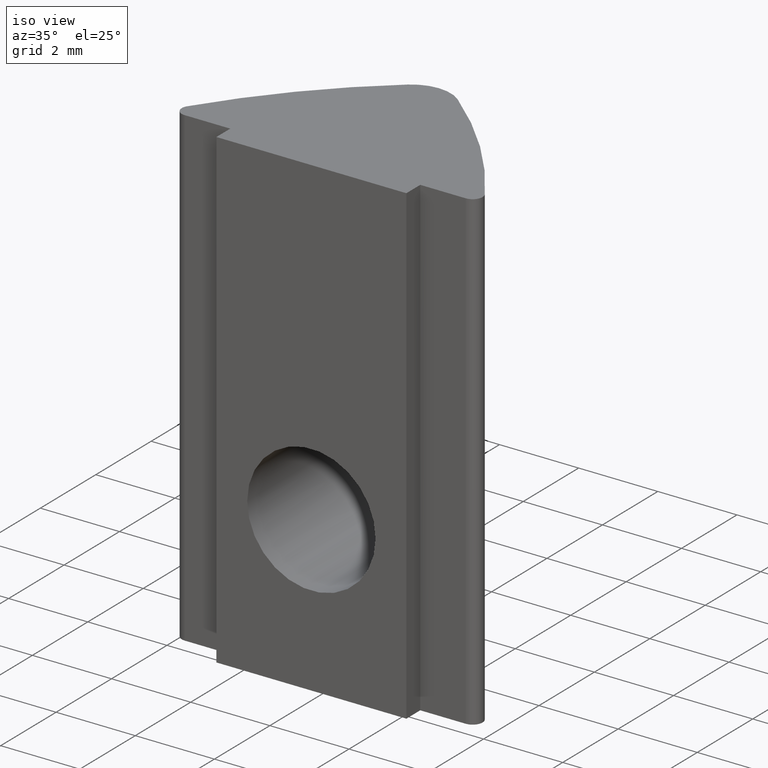
[diagram: clean part render]
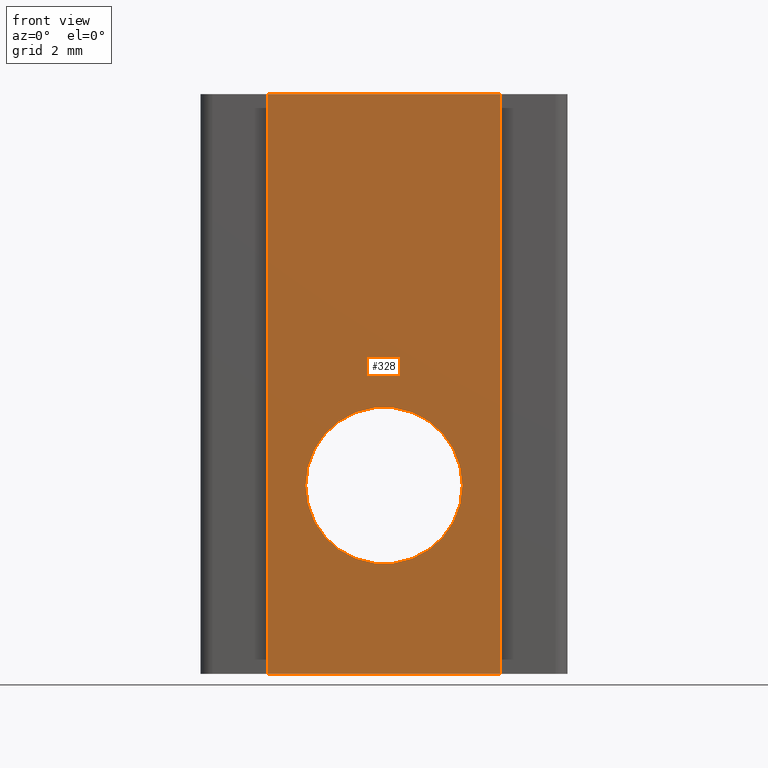
[diagram: tour spotlight — one face highlighted and labeled with its STEP entity id]
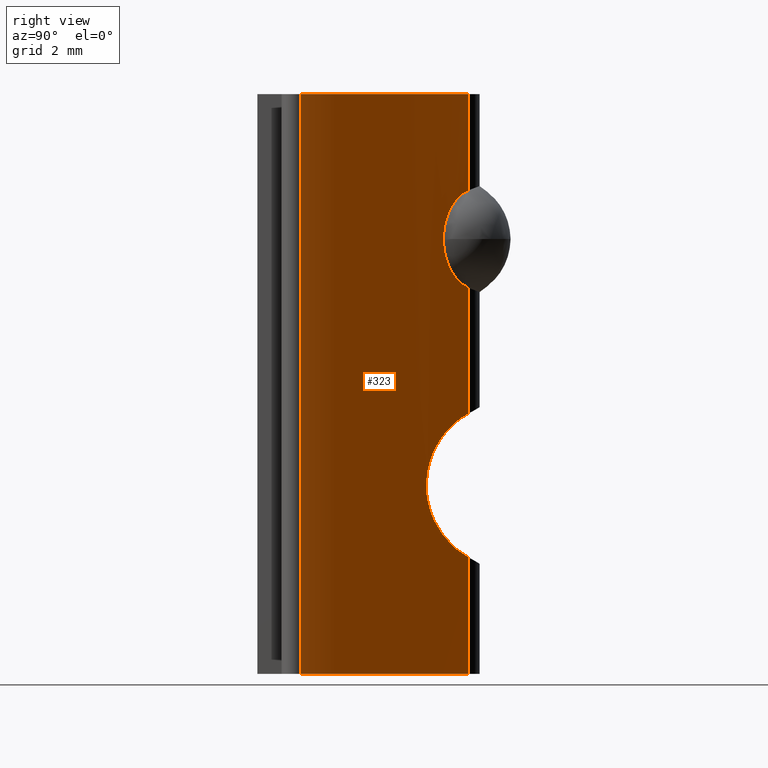
[diagram: tour spotlight — one face highlighted and labeled with its STEP entity id]
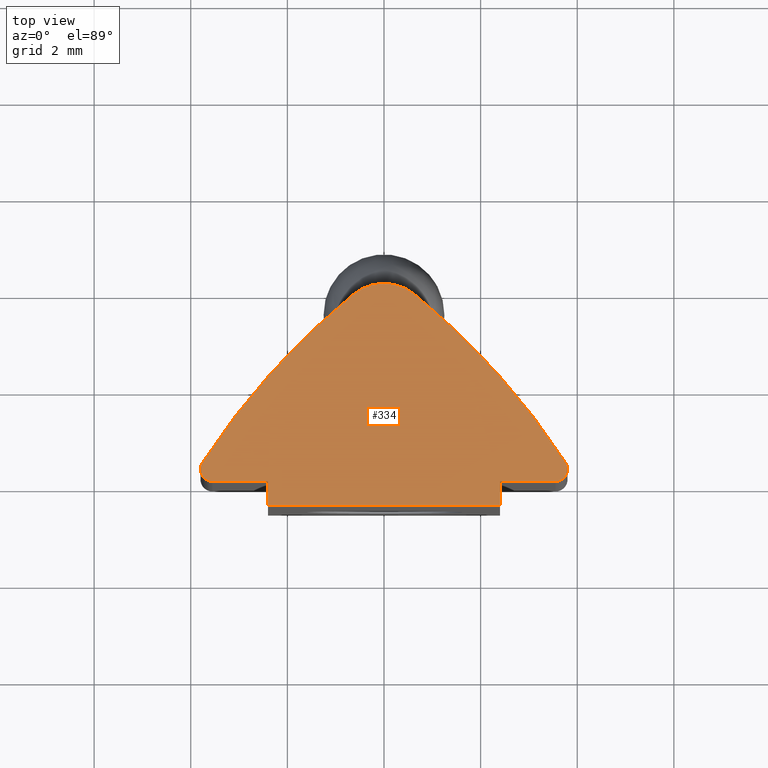
[diagram: tour spotlight — one face highlighted and labeled with its STEP entity id]
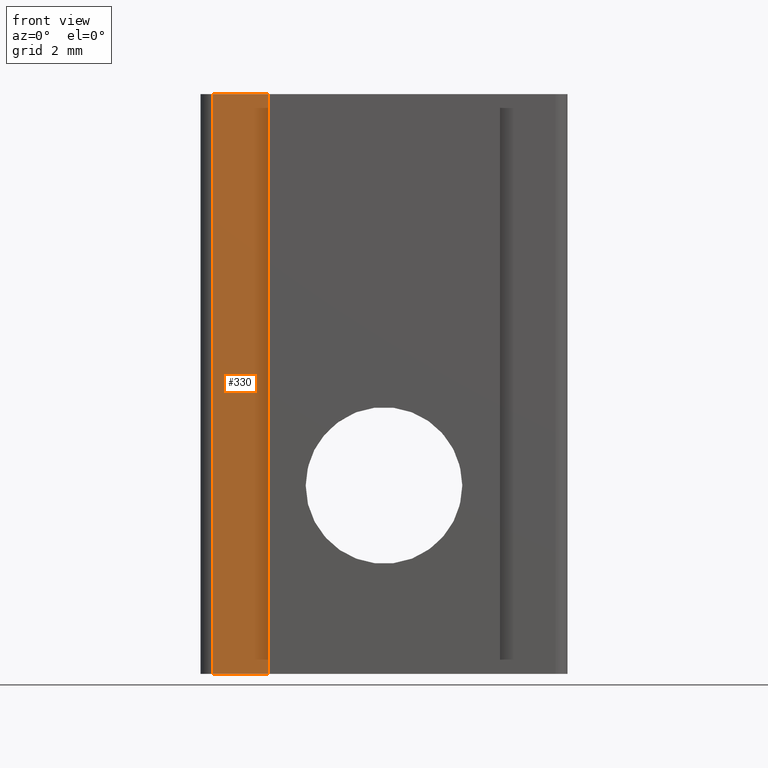
[diagram: tour spotlight — one face highlighted and labeled with its STEP entity id]
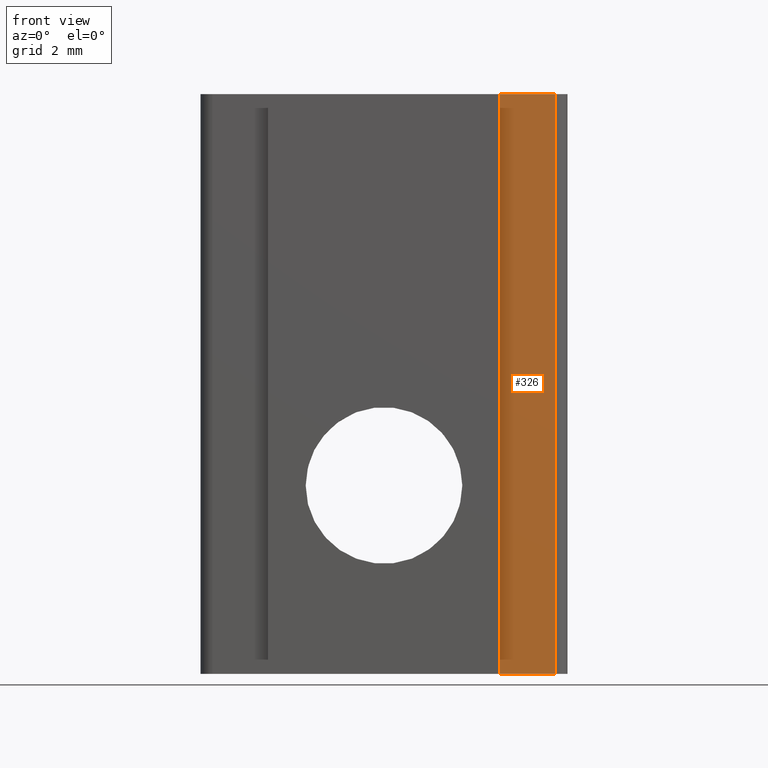
[diagram: tour spotlight — one face highlighted and labeled with its STEP entity id]
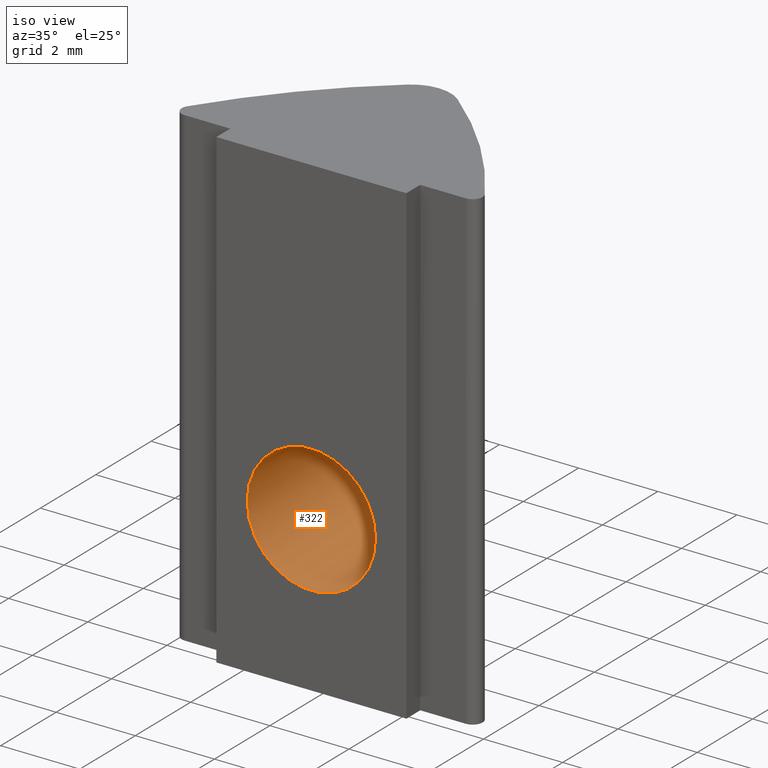
[diagram: tour spotlight — one face highlighted and labeled with its STEP entity id]
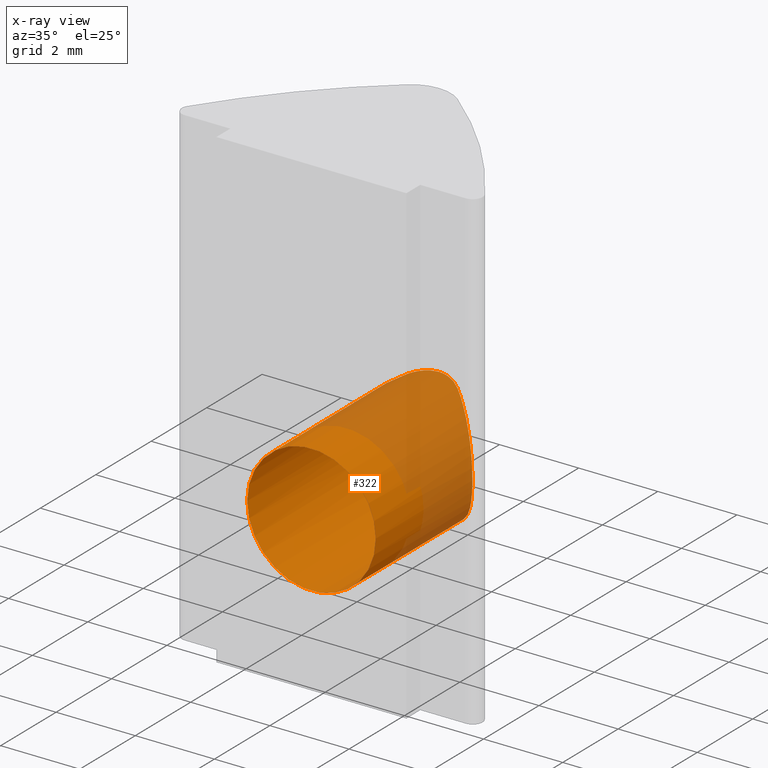
[diagram: x-ray of the same camera — body ghosted, this tour face saturated]
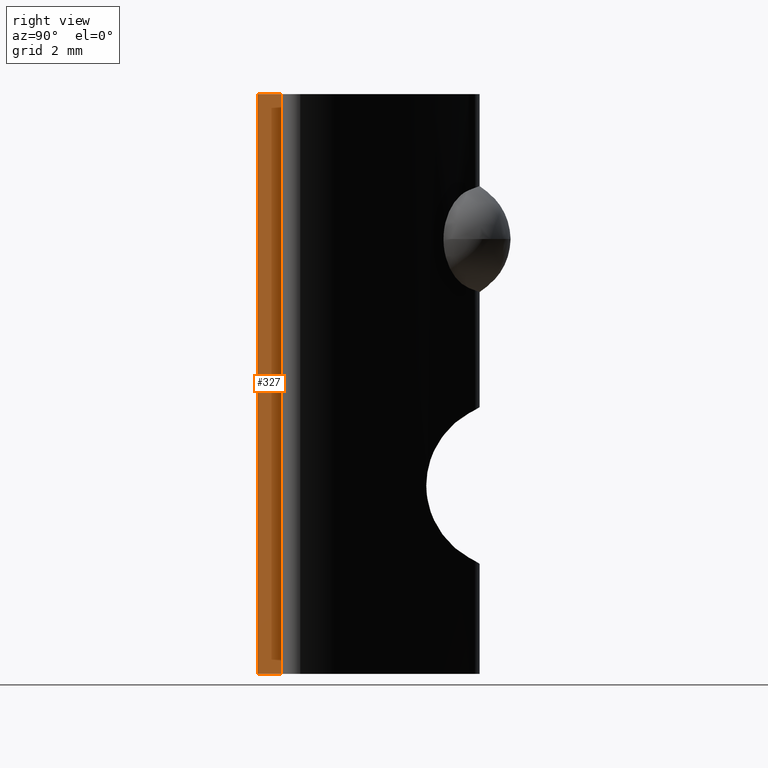
[diagram: tour spotlight — one face highlighted and labeled with its STEP entity id]
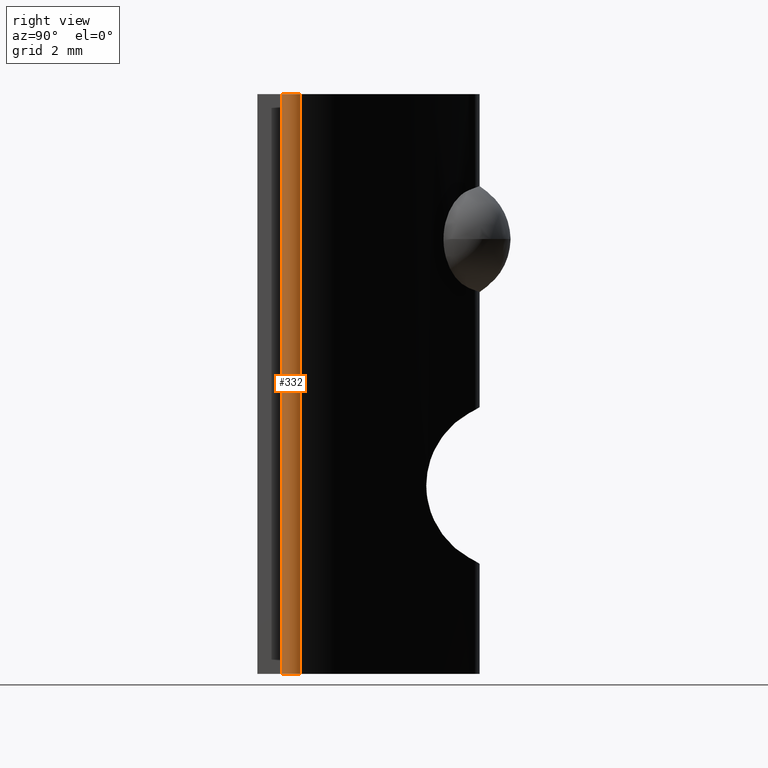
[diagram: tour spotlight — one face highlighted and labeled with its STEP entity id]
A machine part: a face-by-face anatomy tour. The part has 16 B-rep faces; the first image is the clean iso view, then the 8 largest visible faces are spotlighted one at a time (largest first), each with its STEP entity span.

Face 1 — front view, entity #328. In plain terms, the highlighted planar face has unit normal (0, -1, 0).
Definition (entity closure, byte-faithful):
#16=PLANE('',#375);
#36=LINE('',#658,#61);
#37=LINE('',#661,#62);
#38=LINE('',#663,#63);
#39=LINE('',#664,#64);
#61=VECTOR('',#437,10.);
#62=VECTOR('',#440,10.);
#63=VECTOR('',#441,10.);
#64=VECTOR('',#442,10.);
#80=FACE_BOUND('',#119,.T.);
#101=FACE_OUTER_BOUND('',#118,.T.);
#118=EDGE_LOOP('',(#275,#276,#277,#278));
#119=EDGE_LOOP('',(#279));
#129=CIRCLE('',#365,1.621);
#153=VERTEX_POINT('',#603);
#164=VERTEX_POINT('',#654);
#165=VERTEX_POINT('',#656);
#166=VERTEX_POINT('',#660);
#167=VERTEX_POINT('',#662);
#189=EDGE_CURVE('',#153,#153,#129,.T.);
#206=EDGE_CURVE('',#164,#165,#36,.T.);
#207=EDGE_CURVE('',#164,#166,#37,.T.);
#208=EDGE_CURVE('',#167,#165,#38,.T.);
#209=EDGE_CURVE('',#166,#167,#39,.T.);
#275=ORIENTED_EDGE('',*,*,#207,.F.);
#276=ORIENTED_EDGE('',*,*,#206,.T.);
#277=ORIENTED_EDGE('',*,*,#208,.F.);
#278=ORIENTED_EDGE('',*,*,#209,.F.);
#279=ORIENTED_EDGE('',*,*,#189,.T.);
#328=ADVANCED_FACE('',(#101,#80),#16,.T.);
#365=AXIS2_PLACEMENT_3D('',#605,#408,#409);
#375=AXIS2_PLACEMENT_3D('',#659,#438,#439);
#408=DIRECTION('center_axis',(0.,1.,0.));
#409=DIRECTION('ref_axis',(-1.,0.,0.));
#437=DIRECTION('',(0.,0.,1.));
#438=DIRECTION('center_axis',(0.,-1.,0.));
#439=DIRECTION('ref_axis',(1.,0.,0.));
#440=DIRECTION('',(-1.,0.,0.));
#441=DIRECTION('',(1.,0.,0.));
#442=DIRECTION('',(0.,0.,1.));
#603=CARTESIAN_POINT('',(1.621,-0.5,3.9));
#605=CARTESIAN_POINT('Origin',(0.,-0.5,3.9));
#654=CARTESIAN_POINT('',(2.4,-0.5,0.));
#656=CARTESIAN_POINT('',(2.4,-0.5,12.));
#658=CARTESIAN_POINT('',(2.4,-0.5,0.));
#659=CARTESIAN_POINT('Origin',(-2.4,-0.5,0.));
#660=CARTESIAN_POINT('',(-2.4,-0.5,0.));
#661=CARTESIAN_POINT('',(2.4,-0.5,0.));
#662=CARTESIAN_POINT('',(-2.4,-0.5,12.));
#663=CARTESIAN_POINT('',(2.4,-0.5,12.));
#664=CARTESIAN_POINT('',(-2.4,-0.5,0.));

Face 2 — right view, entity #323. In plain terms, the highlighted cylindrical surface (partial cylindrical patch) has radius 15 mm, axis along (0, 0, 1).
Definition (entity closure, byte-faithful):
#25=LINE('',#577,#50);
#27=LINE('',#632,#52);
#28=LINE('',#636,#53);
#29=LINE('',#639,#54);
#50=VECTOR('',#404,10.);
#52=VECTOR('',#412,10.);
#53=VECTOR('',#415,10.);
#54=VECTOR('',#418,10.);
#74=CYLINDRICAL_SURFACE('',#366,15.);
#81=B_SPLINE_CURVE_WITH_KNOTS('',3,(#476,#477,#478,#479,#480,#481,#482,
#483,#484,#485,#486,#487,#488,#489,#490,#491,#492,#493),.UNSPECIFIED.,.F.,
 .F.,(4,2,2,2,2,2,2,2,4),(0.182968456243765,0.210851468543244,0.243239566367713,
0.279251537174953,0.315263507982192,0.351275478789432,0.387287449596671,
0.41967554742114,0.447558559720619),.UNSPECIFIED.);
#88=B_SPLINE_CURVE_WITH_KNOTS('',3,(#593,#594,#595,#596,#597,#598,#599,
#600,#601,#602),.UNSPECIFIED.,.F.,.F.,(4,2,2,2,4),(0.550486779478098,0.611712814552116,
0.672938849626135,0.752841345312403,0.755383937668563),.UNSPECIFIED.);
#89=B_SPLINE_CURVE_WITH_KNOTS('',3,(#607,#608,#609,#610,#611,#612,#613,
#614,#615,#616),.UNSPECIFIED.,.F.,.F.,(4,2,2,2,4),(0.345589621287633,0.348132213643793,
0.428034709330061,0.48926074440408,0.550486779478098),.UNSPECIFIED.);
#96=FACE_OUTER_BOUND('',#113,.T.);
#113=EDGE_LOOP('',(#249,#250,#251,#252,#253,#254,#255,#256,#257));
#130=CIRCLE('',#367,15.);
#131=CIRCLE('',#368,15.);
#140=VERTEX_POINT('',#474);
#141=VERTEX_POINT('',#475);
#150=VERTEX_POINT('',#576);
#152=VERTEX_POINT('',#592);
#154=VERTEX_POINT('',#606);
#156=VERTEX_POINT('',#631);
#157=VERTEX_POINT('',#633);
#158=VERTEX_POINT('',#635);
#159=VERTEX_POINT('',#637);
#173=EDGE_CURVE('',#140,#141,#81,.T.);
#184=EDGE_CURVE('',#150,#140,#25,.T.);
#187=EDGE_CURVE('',#152,#150,#88,.T.);
#190=EDGE_CURVE('',#154,#152,#89,.T.);
#193=EDGE_CURVE('',#141,#156,#27,.T.);
#194=EDGE_CURVE('',#157,#156,#130,.T.);
#195=EDGE_CURVE('',#158,#157,#28,.T.);
#196=EDGE_CURVE('',#159,#158,#131,.T.);
#197=EDGE_CURVE('',#159,#154,#29,.T.);
#249=ORIENTED_EDGE('',*,*,#173,.T.);
#250=ORIENTED_EDGE('',*,*,#193,.T.);
#251=ORIENTED_EDGE('',*,*,#194,.F.);
#252=ORIENTED_EDGE('',*,*,#195,.F.);
#253=ORIENTED_EDGE('',*,*,#196,.F.);
#254=ORIENTED_EDGE('',*,*,#197,.T.);
#255=ORIENTED_EDGE('',*,*,#190,.T.);
#256=ORIENTED_EDGE('',*,*,#187,.T.);
#257=ORIENTED_EDGE('',*,*,#184,.T.);
#323=ADVANCED_FACE('',(#96),#74,.T.);
#366=AXIS2_PLACEMENT_3D('',#630,#410,#411);
#367=AXIS2_PLACEMENT_3D('',#634,#413,#414);
#368=AXIS2_PLACEMENT_3D('',#638,#416,#417);
#404=DIRECTION('',(0.,0.,1.));
#410=DIRECTION('center_axis',(0.,0.,1.));
#411=DIRECTION('ref_axis',(-0.839729366215846,-0.543005148700023,0.));
#412=DIRECTION('',(0.,0.,1.));
#413=DIRECTION('center_axis',(0.,0.,1.));
#414=DIRECTION('ref_axis',(-0.839729366215846,-0.543005148700023,0.));
#415=DIRECTION('',(0.,0.,1.));
#416=DIRECTION('center_axis',(0.,0.,-1.));
#417=DIRECTION('ref_axis',(-0.839729366215846,-0.543005148700023,0.));
#418=DIRECTION('',(0.,0.,1.));
#474=CARTESIAN_POINT('',(0.631143439405981,3.87566613880895,7.98854910596354));
#475=CARTESIAN_POINT('',(0.631143439405981,3.87566613880895,10.0114508940365));
#476=CARTESIAN_POINT('Ctrl Pts',(0.631143439405981,3.87566613880895,7.98854910596354));
#477=CARTESIAN_POINT('Ctrl Pts',(0.706906064844613,3.81401966282485,8.0129285301541));
#478=CARTESIAN_POINT('Ctrl Pts',(0.779525979046031,3.75362472286554,8.05176362716048));
#479=CARTESIAN_POINT('Ctrl Pts',(0.912982315815267,3.64093699186633,8.15102680410987));
#480=CARTESIAN_POINT('Ctrl Pts',(0.989434669996827,3.57495232534953,8.23217409867822));
#481=CARTESIAN_POINT('Ctrl Pts',(1.10392184773954,3.47473870952647,8.40197993384423));
#482=CARTESIAN_POINT('Ctrl Pts',(1.15588616264958,3.42835364541138,8.51245620052577));
#483=CARTESIAN_POINT('Ctrl Pts',(1.22448257068173,3.36670895791017,8.75144234123317));
#484=CARTESIAN_POINT('Ctrl Pts',(1.24115006546628,3.3515193110433,8.8799600973092));
#485=CARTESIAN_POINT('Ctrl Pts',(1.24115006546628,3.3515193110433,9.1200399026908));
#486=CARTESIAN_POINT('Ctrl Pts',(1.22448257068173,3.36670895791017,9.24855765876683));
#487=CARTESIAN_POINT('Ctrl Pts',(1.15588616264958,3.42835364541138,9.48754379947423));
#488=CARTESIAN_POINT('Ctrl Pts',(1.10392184773954,3.47473870952647,9.59802006615577));
#489=CARTESIAN_POINT('Ctrl Pts',(0.989434669996827,3.57495232534953,9.76782590132178));
#490=CARTESIAN_POINT('Ctrl Pts',(0.912982315815267,3.64093699186633,9.84897319589013));
#491=CARTESIAN_POINT('Ctrl Pts',(0.779525979046031,3.75362472286554,9.94823637283952));
#492=CARTESIAN_POINT('Ctrl Pts',(0.706906064844613,3.81401966282485,9.9870714698459));
#493=CARTESIAN_POINT('Ctrl Pts',(0.631143439405981,3.87566613880895,10.0114508940365));
#576=CARTESIAN_POINT('',(0.631143439405981,3.87566613880895,5.39308370793294));
#577=CARTESIAN_POINT('',(0.631143439405981,3.87566613880895,0.));
#592=CARTESIAN_POINT('',(1.621,2.99478864206104,3.9));
#593=CARTESIAN_POINT('Ctrl Pts',(1.621,2.99478864206104,3.9));
#594=CARTESIAN_POINT('Ctrl Pts',(1.621,2.99478864206104,4.10408678358006));
#595=CARTESIAN_POINT('Ctrl Pts',(1.58015812472965,3.03484940262791,4.31425970978764));
#596=CARTESIAN_POINT('Ctrl Pts',(1.4300095645442,3.17774960188118,4.68967321295034));
#597=CARTESIAN_POINT('Ctrl Pts',(1.32109937149127,3.27960366073968,4.85544651092262));
#598=CARTESIAN_POINT('Ctrl Pts',(1.05140748548654,3.52257326609361,5.1546704584439));
#599=CARTESIAN_POINT('Ctrl Pts',(0.860129725182062,3.6887177573001,5.29280134783792));
#600=CARTESIAN_POINT('Ctrl Pts',(0.644494859604034,3.86479279160016,5.38738700741643));
#601=CARTESIAN_POINT('Ctrl Pts',(0.63782740380467,3.87022753569301,5.39025832027581));
#602=CARTESIAN_POINT('Ctrl Pts',(0.631143439405981,3.87566613880895,5.39308370793294));
#606=CARTESIAN_POINT('',(0.631143439405981,3.87566613880895,2.40691629206706));
#607=CARTESIAN_POINT('Ctrl Pts',(0.631143439405981,3.87566613880895,2.40691629206706));
#608=CARTESIAN_POINT('Ctrl Pts',(0.63782740380467,3.87022753569301,2.40974167972419));
#609=CARTESIAN_POINT('Ctrl Pts',(0.644494859604033,3.86479279160016,2.41261299258357));
#610=CARTESIAN_POINT('Ctrl Pts',(0.860129725182061,3.6887177573001,2.50719865216208));
#611=CARTESIAN_POINT('Ctrl Pts',(1.05140748548654,3.52257326609361,2.6453295415561));
#612=CARTESIAN_POINT('Ctrl Pts',(1.32109937149127,3.27960366073968,2.94455348907738));
#613=CARTESIAN_POINT('Ctrl Pts',(1.4300095645442,3.17774960188118,3.11032678704966));
#614=CARTESIAN_POINT('Ctrl Pts',(1.58015812472965,3.03484940262791,3.48574029021236));
#615=CARTESIAN_POINT('Ctrl Pts',(1.621,2.99478864206104,3.69591321641994));
#616=CARTESIAN_POINT('Ctrl Pts',(1.621,2.99478864206104,3.9));
#630=CARTESIAN_POINT('Origin',(-8.83600815168373,-7.75932594332533,0.));
#631=CARTESIAN_POINT('',(0.631143439405981,3.87566613880895,12.));
#632=CARTESIAN_POINT('',(0.631143439405981,3.87566613880895,0.));
#633=CARTESIAN_POINT('',(3.75993234155396,0.385751287175005,12.));
#634=CARTESIAN_POINT('Origin',(-8.83600815168373,-7.75932594332533,12.));
#635=CARTESIAN_POINT('',(3.75993234155396,0.385751287175005,0.));
#636=CARTESIAN_POINT('',(3.75993234155396,0.385751287175005,0.));
#637=CARTESIAN_POINT('',(0.631143439405981,3.87566613880895,0.));
#638=CARTESIAN_POINT('Origin',(-8.83600815168373,-7.75932594332533,0.));
#639=CARTESIAN_POINT('',(0.631143439405981,3.87566613880895,0.));

Face 3 — top view, entity #334. In plain terms, the highlighted planar face has unit normal (0, 0, 1).
Definition (entity closure, byte-faithful):
#20=PLANE('',#385);
#32=LINE('',#651,#57);
#35=LINE('',#657,#60);
#38=LINE('',#663,#63);
#41=LINE('',#669,#66);
#44=LINE('',#675,#69);
#57=VECTOR('',#431,10.);
#60=VECTOR('',#436,10.);
#63=VECTOR('',#441,10.);
#66=VECTOR('',#446,10.);
#69=VECTOR('',#451,10.);
#107=FACE_OUTER_BOUND('',#125,.T.);
#125=EDGE_LOOP('',(#306,#307,#308,#309,#310,#311,#312,#313,#314,#315));
#128=CIRCLE('',#362,15.);
#130=CIRCLE('',#367,15.);
#132=CIRCLE('',#370,1.);
#135=CIRCLE('',#380,0.25);
#137=CIRCLE('',#383,0.25);
#148=VERTEX_POINT('',#570);
#149=VERTEX_POINT('',#572);
#156=VERTEX_POINT('',#631);
#157=VERTEX_POINT('',#633);
#162=VERTEX_POINT('',#648);
#163=VERTEX_POINT('',#650);
#165=VERTEX_POINT('',#656);
#167=VERTEX_POINT('',#662);
#169=VERTEX_POINT('',#668);
#171=VERTEX_POINT('',#674);
#182=EDGE_CURVE('',#149,#148,#128,.T.);
#194=EDGE_CURVE('',#157,#156,#130,.T.);
#198=EDGE_CURVE('',#156,#149,#132,.T.);
#202=EDGE_CURVE('',#163,#162,#32,.T.);
#205=EDGE_CURVE('',#165,#163,#35,.T.);
#208=EDGE_CURVE('',#167,#165,#38,.T.);
#211=EDGE_CURVE('',#169,#167,#41,.T.);
#214=EDGE_CURVE('',#171,#169,#44,.T.);
#217=EDGE_CURVE('',#148,#171,#135,.T.);
#219=EDGE_CURVE('',#162,#157,#137,.T.);
#306=ORIENTED_EDGE('',*,*,#219,.T.);
#307=ORIENTED_EDGE('',*,*,#194,.T.);
#308=ORIENTED_EDGE('',*,*,#198,.T.);
#309=ORIENTED_EDGE('',*,*,#182,.T.);
#310=ORIENTED_EDGE('',*,*,#217,.T.);
#311=ORIENTED_EDGE('',*,*,#214,.T.);
#312=ORIENTED_EDGE('',*,*,#211,.T.);
#313=ORIENTED_EDGE('',*,*,#208,.T.);
#314=ORIENTED_EDGE('',*,*,#205,.T.);
#315=ORIENTED_EDGE('',*,*,#202,.T.);
#334=ADVANCED_FACE('',(#107),#20,.T.);
#362=AXIS2_PLACEMENT_3D('',#573,#399,#400);
#367=AXIS2_PLACEMENT_3D('',#634,#413,#414);
#370=AXIS2_PLACEMENT_3D('',#641,#421,#422);
#380=AXIS2_PLACEMENT_3D('',#679,#457,#458);
#383=AXIS2_PLACEMENT_3D('',#682,#463,#464);
#385=AXIS2_PLACEMENT_3D('',#684,#467,#468);
#399=DIRECTION('center_axis',(0.,0.,1.));
#400=DIRECTION('ref_axis',(0.63114343940598,-0.775666138808953,0.));
#413=DIRECTION('center_axis',(0.,0.,1.));
#414=DIRECTION('ref_axis',(-0.839729366215846,-0.543005148700023,0.));
#421=DIRECTION('center_axis',(0.,0.,1.));
#422=DIRECTION('ref_axis',(-0.63114343940598,-0.775666138808953,0.));
#431=DIRECTION('',(1.,6.69888676308604E-33,0.));
#436=DIRECTION('',(0.,1.,0.));
#441=DIRECTION('',(1.,0.,0.));
#446=DIRECTION('',(0.,-1.,0.));
#451=DIRECTION('',(1.,0.,0.));
#457=DIRECTION('center_axis',(0.,0.,1.));
#458=DIRECTION('ref_axis',(0.839729366215846,-0.543005148700022,0.));
#463=DIRECTION('center_axis',(0.,0.,1.));
#464=DIRECTION('ref_axis',(0.,1.,0.));
#467=DIRECTION('center_axis',(0.,0.,1.));
#468=DIRECTION('ref_axis',(1.,0.,0.));
#570=CARTESIAN_POINT('',(-3.75993234155396,0.385751287175005,12.));
#572=CARTESIAN_POINT('',(-0.631143439405981,3.87566613880895,12.));
#573=CARTESIAN_POINT('Origin',(8.83600815168373,-7.75932594332533,12.));
#631=CARTESIAN_POINT('',(0.631143439405981,3.87566613880895,12.));
#633=CARTESIAN_POINT('',(3.75993234155396,0.385751287175005,12.));
#634=CARTESIAN_POINT('Origin',(-8.83600815168373,-7.75932594332533,12.));
#641=CARTESIAN_POINT('Origin',(0.,3.1,12.));
#648=CARTESIAN_POINT('',(3.55,0.,12.));
#650=CARTESIAN_POINT('',(2.4,0.,12.));
#651=CARTESIAN_POINT('',(3.55,7.70371977754894E-33,12.));
#656=CARTESIAN_POINT('',(2.4,-0.5,12.));
#657=CARTESIAN_POINT('',(2.4,0.,12.));
#662=CARTESIAN_POINT('',(-2.4,-0.5,12.));
#663=CARTESIAN_POINT('',(2.4,-0.5,12.));
#668=CARTESIAN_POINT('',(-2.4,0.,12.));
#669=CARTESIAN_POINT('',(-2.4,-0.5,12.));
#674=CARTESIAN_POINT('',(-3.55,0.,12.));
#675=CARTESIAN_POINT('',(-2.4,0.,12.));
#679=CARTESIAN_POINT('Origin',(-3.55,0.25,12.));
#682=CARTESIAN_POINT('Origin',(3.55,0.25,12.));
#684=CARTESIAN_POINT('Origin',(1.22534670947121E-16,1.0133663317219,12.));

Face 4 — front view, entity #330. In plain terms, the highlighted planar face has unit normal (0, -1, 0).
Definition (entity closure, byte-faithful):
#18=PLANE('',#377);
#42=LINE('',#670,#67);
#43=LINE('',#673,#68);
#44=LINE('',#675,#69);
#45=LINE('',#676,#70);
#67=VECTOR('',#447,10.);
#68=VECTOR('',#450,10.);
#69=VECTOR('',#451,10.);
#70=VECTOR('',#452,10.);
#103=FACE_OUTER_BOUND('',#121,.T.);
#121=EDGE_LOOP('',(#284,#285,#286,#287));
#168=VERTEX_POINT('',#666);
#169=VERTEX_POINT('',#668);
#170=VERTEX_POINT('',#672);
#171=VERTEX_POINT('',#674);
#212=EDGE_CURVE('',#168,#169,#42,.T.);
#213=EDGE_CURVE('',#168,#170,#43,.T.);
#214=EDGE_CURVE('',#171,#169,#44,.T.);
#215=EDGE_CURVE('',#170,#171,#45,.T.);
#284=ORIENTED_EDGE('',*,*,#213,.F.);
#285=ORIENTED_EDGE('',*,*,#212,.T.);
#286=ORIENTED_EDGE('',*,*,#214,.F.);
#287=ORIENTED_EDGE('',*,*,#215,.F.);
#330=ADVANCED_FACE('',(#103),#18,.T.);
#377=AXIS2_PLACEMENT_3D('',#671,#448,#449);
#447=DIRECTION('',(0.,0.,1.));
#448=DIRECTION('center_axis',(0.,-1.,0.));
#449=DIRECTION('ref_axis',(1.,0.,0.));
#450=DIRECTION('',(-1.,0.,0.));
#451=DIRECTION('',(1.,0.,0.));
#452=DIRECTION('',(0.,0.,1.));
#666=CARTESIAN_POINT('',(-2.4,0.,0.));
#668=CARTESIAN_POINT('',(-2.4,0.,12.));
#670=CARTESIAN_POINT('',(-2.4,0.,0.));
#671=CARTESIAN_POINT('Origin',(-3.55,0.,0.));
#672=CARTESIAN_POINT('',(-3.55,0.,0.));
#673=CARTESIAN_POINT('',(-2.4,0.,0.));
#674=CARTESIAN_POINT('',(-3.55,0.,12.));
#675=CARTESIAN_POINT('',(-2.4,0.,12.));
#676=CARTESIAN_POINT('',(-3.55,0.,0.));

Face 5 — front view, entity #326. In plain terms, the highlighted planar face has unit normal (0, -1, 0).
Definition (entity closure, byte-faithful):
#14=PLANE('',#373);
#30=LINE('',#647,#55);
#31=LINE('',#649,#56);
#32=LINE('',#651,#57);
#33=LINE('',#652,#58);
#55=VECTOR('',#429,10.);
#56=VECTOR('',#430,10.);
#57=VECTOR('',#431,10.);
#58=VECTOR('',#432,10.);
#99=FACE_OUTER_BOUND('',#116,.T.);
#116=EDGE_LOOP('',(#267,#268,#269,#270));
#160=VERTEX_POINT('',#645);
#161=VERTEX_POINT('',#646);
#162=VERTEX_POINT('',#648);
#163=VERTEX_POINT('',#650);
#200=EDGE_CURVE('',#160,#161,#30,.T.);
#201=EDGE_CURVE('',#160,#162,#31,.T.);
#202=EDGE_CURVE('',#163,#162,#32,.T.);
#203=EDGE_CURVE('',#161,#163,#33,.T.);
#267=ORIENTED_EDGE('',*,*,#200,.F.);
#268=ORIENTED_EDGE('',*,*,#201,.T.);
#269=ORIENTED_EDGE('',*,*,#202,.F.);
#270=ORIENTED_EDGE('',*,*,#203,.F.);
#326=ADVANCED_FACE('',(#99),#14,.T.);
#373=AXIS2_PLACEMENT_3D('',#644,#427,#428);
#427=DIRECTION('center_axis',(6.69888676308604E-33,-1.,0.));
#428=DIRECTION('ref_axis',(1.,6.69888676308604E-33,0.));
#429=DIRECTION('',(-1.,-6.69888676308604E-33,0.));
#430=DIRECTION('',(0.,0.,1.));
#431=DIRECTION('',(1.,6.69888676308604E-33,0.));
#432=DIRECTION('',(0.,0.,1.));
#644=CARTESIAN_POINT('Origin',(2.4,0.,0.));
#645=CARTESIAN_POINT('',(3.55,7.70371977754894E-33,0.));
#646=CARTESIAN_POINT('',(2.4,0.,0.));
#647=CARTESIAN_POINT('',(3.55,7.70371977754894E-33,0.));
#648=CARTESIAN_POINT('',(3.55,0.,12.));
#649=CARTESIAN_POINT('',(3.55,7.70371977754894E-33,0.));
#650=CARTESIAN_POINT('',(2.4,0.,12.));
#651=CARTESIAN_POINT('',(3.55,7.70371977754894E-33,12.));
#652=CARTESIAN_POINT('',(2.4,0.,0.));

Face 6 — iso view, entity #322. An x-ray twin of the same camera follows (body ghosted, this face saturated) — the face is partly hidden behind the body. In plain terms, the highlighted cylindrical surface (bore or boss wall) has radius 1.621 mm, axis along (0, 1, 0).
Definition (entity closure, byte-faithful):
#26=LINE('',#604,#51);
#51=VECTOR('',#407,1.621);
#73=CYLINDRICAL_SURFACE('',#364,1.621);
#85=B_SPLINE_CURVE_WITH_KNOTS('',3,(#547,#548,#549,#550,#551,#552,#553,
#554,#555,#556,#557,#558,#559,#560,#561,#562,#563,#564,#565),
 .UNSPECIFIED.,.F.,.F.,(4,2,2,2,3,2,2,2,4),(-0.204897158190466,-0.202354565834305,
-0.122452070148037,-0.0612260350740186,0.,0.0612260350740184,0.122452070148037,
0.202354565834305,0.204897158190465),.UNSPECIFIED.);
#86=B_SPLINE_CURVE_WITH_KNOTS('',3,(#579,#580,#581,#582,#583,#584),
 .UNSPECIFIED.,.F.,.F.,(4,2,4),(0.0887988994654548,0.116987272487438,0.155790089731869),
 .UNSPECIFIED.);
#87=B_SPLINE_CURVE_WITH_KNOTS('',3,(#585,#586,#587,#588,#589,#590),
 .UNSPECIFIED.,.F.,.F.,(4,2,4),(0.155790089731869,0.1945929069763,0.222781279998283),
 .UNSPECIFIED.);
#88=B_SPLINE_CURVE_WITH_KNOTS('',3,(#593,#594,#595,#596,#597,#598,#599,
#600,#601,#602),.UNSPECIFIED.,.F.,.F.,(4,2,2,2,4),(0.550486779478098,0.611712814552116,
0.672938849626135,0.752841345312403,0.755383937668563),.UNSPECIFIED.);
#89=B_SPLINE_CURVE_WITH_KNOTS('',3,(#607,#608,#609,#610,#611,#612,#613,
#614,#615,#616),.UNSPECIFIED.,.F.,.F.,(4,2,2,2,4),(0.345589621287633,0.348132213643793,
0.428034709330061,0.48926074440408,0.550486779478098),.UNSPECIFIED.);
#90=B_SPLINE_CURVE_WITH_KNOTS('',3,(#618,#619,#620,#621,#622,#623),
 .UNSPECIFIED.,.F.,.F.,(4,2,4),(0.467370269195606,0.506173086440038,0.53436145946202),
 .UNSPECIFIED.);
#91=B_SPLINE_CURVE_WITH_KNOTS('',3,(#624,#625,#626,#627,#628,#629),
 .UNSPECIFIED.,.F.,.F.,(4,2,4),(0.400379078929193,0.428567451951175,0.467370269195606),
 .UNSPECIFIED.);
#95=FACE_OUTER_BOUND('',#112,.T.);
#112=EDGE_LOOP('',(#239,#240,#241,#242,#243,#244,#245,#246,#247,#248));
#129=CIRCLE('',#365,1.621);
#144=VERTEX_POINT('',#544);
#145=VERTEX_POINT('',#546);
#150=VERTEX_POINT('',#576);
#151=VERTEX_POINT('',#578);
#152=VERTEX_POINT('',#592);
#153=VERTEX_POINT('',#603);
#154=VERTEX_POINT('',#606);
#155=VERTEX_POINT('',#617);
#178=EDGE_CURVE('',#144,#145,#85,.T.);
#185=EDGE_CURVE('',#150,#151,#86,.T.);
#186=EDGE_CURVE('',#151,#144,#87,.T.);
#187=EDGE_CURVE('',#152,#150,#88,.T.);
#188=EDGE_CURVE('',#152,#153,#26,.T.);
#189=EDGE_CURVE('',#153,#153,#129,.T.);
#190=EDGE_CURVE('',#154,#152,#89,.T.);
#191=EDGE_CURVE('',#155,#154,#90,.T.);
#192=EDGE_CURVE('',#145,#155,#91,.T.);
#239=ORIENTED_EDGE('',*,*,#186,.F.);
#240=ORIENTED_EDGE('',*,*,#185,.F.);
#241=ORIENTED_EDGE('',*,*,#187,.F.);
#242=ORIENTED_EDGE('',*,*,#188,.T.);
#243=ORIENTED_EDGE('',*,*,#189,.F.);
#244=ORIENTED_EDGE('',*,*,#188,.F.);
#245=ORIENTED_EDGE('',*,*,#190,.F.);
#246=ORIENTED_EDGE('',*,*,#191,.F.);
#247=ORIENTED_EDGE('',*,*,#192,.F.);
#248=ORIENTED_EDGE('',*,*,#178,.F.);
#322=ADVANCED_FACE('',(#95),#73,.F.);
#364=AXIS2_PLACEMENT_3D('',#591,#405,#406);
#365=AXIS2_PLACEMENT_3D('',#605,#408,#409);
#405=DIRECTION('center_axis',(0.,1.,0.));
#406=DIRECTION('ref_axis',(-1.,0.,0.));
#407=DIRECTION('',(0.,-1.,0.));
#408=DIRECTION('center_axis',(0.,1.,0.));
#409=DIRECTION('ref_axis',(-1.,0.,0.));
#544=CARTESIAN_POINT('',(-0.631143439405981,3.87566613880895,5.39308370793294));
#546=CARTESIAN_POINT('',(-0.631143439405981,3.87566613880895,2.40691629206706));
#547=CARTESIAN_POINT('Ctrl Pts',(-0.631143439405981,3.87566613880895,5.39308370793294));
#548=CARTESIAN_POINT('Ctrl Pts',(-0.637827403804669,3.87022753569301,5.39025832027581));
#549=CARTESIAN_POINT('Ctrl Pts',(-0.644494859604033,3.86479279160017,5.38738700741643));
#550=CARTESIAN_POINT('Ctrl Pts',(-0.860129725182061,3.6887177573001,5.29280134783792));
#551=CARTESIAN_POINT('Ctrl Pts',(-1.05140748548654,3.52257326609361,5.1546704584439));
#552=CARTESIAN_POINT('Ctrl Pts',(-1.32109937149127,3.27960366073968,4.85544651092262));
#553=CARTESIAN_POINT('Ctrl Pts',(-1.4300095645442,3.17774960188118,4.68967321295034));
#554=CARTESIAN_POINT('Ctrl Pts',(-1.58015812472965,3.03484940262791,4.31425970978764));
#555=CARTESIAN_POINT('Ctrl Pts',(-1.621,2.99478864206104,4.10408678358006));
#556=CARTESIAN_POINT('Ctrl Pts',(-1.621,2.99478864206104,3.9));
#557=CARTESIAN_POINT('Ctrl Pts',(-1.621,2.99478864206104,3.69591321641994));
#558=CARTESIAN_POINT('Ctrl Pts',(-1.58015812472965,3.03484940262791,3.48574029021236));
#559=CARTESIAN_POINT('Ctrl Pts',(-1.4300095645442,3.17774960188118,3.11032678704966));
#560=CARTESIAN_POINT('Ctrl Pts',(-1.32109937149127,3.27960366073968,2.94455348907738));
#561=CARTESIAN_POINT('Ctrl Pts',(-1.05140748548654,3.52257326609361,2.6453295415561));
#562=CARTESIAN_POINT('Ctrl Pts',(-0.860129725182061,3.6887177573001,2.50719865216208));
#563=CARTESIAN_POINT('Ctrl Pts',(-0.644494859604034,3.86479279160017,2.41261299258357));
#564=CARTESIAN_POINT('Ctrl Pts',(-0.637827403804669,3.87022753569301,2.40974167972419));
#565=CARTESIAN_POINT('Ctrl Pts',(-0.631143439405981,3.87566613880895,2.40691629206706));
#576=CARTESIAN_POINT('',(0.631143439405981,3.87566613880895,5.39308370793294));
#578=CARTESIAN_POINT('',(0.,4.1,5.521));
#579=CARTESIAN_POINT('Ctrl Pts',(0.63114343940598,3.87566613880895,5.39308370793294));
#580=CARTESIAN_POINT('Ctrl Pts',(0.559633702500536,3.93385212765568,5.42331168581638));
#581=CARTESIAN_POINT('Ctrl Pts',(0.476906400364672,3.98426258594251,5.45197835981588));
#582=CARTESIAN_POINT('Ctrl Pts',(0.264967094338513,4.07341093913773,5.50418764124347));
#583=CARTESIAN_POINT('Ctrl Pts',(0.129342724148104,4.1,5.521));
#584=CARTESIAN_POINT('Ctrl Pts',(6.93889390390723E-17,4.1,5.521));
#585=CARTESIAN_POINT('Ctrl Pts',(2.42861286636753E-16,4.1,5.521));
#586=CARTESIAN_POINT('Ctrl Pts',(-0.129342724148104,4.1,5.521));
#587=CARTESIAN_POINT('Ctrl Pts',(-0.264967094338513,4.07341093913773,5.50418764124347));
#588=CARTESIAN_POINT('Ctrl Pts',(-0.476906400364672,3.98426258594251,5.45197835981588));
#589=CARTESIAN_POINT('Ctrl Pts',(-0.559633702500536,3.93385212765568,5.42331168581638));
#590=CARTESIAN_POINT('Ctrl Pts',(-0.63114343940598,3.87566613880895,5.39308370793294));
#591=CARTESIAN_POINT('Origin',(0.,-10.8305056846712,3.9));
#592=CARTESIAN_POINT('',(1.621,2.99478864206104,3.9));
#593=CARTESIAN_POINT('Ctrl Pts',(1.621,2.99478864206104,3.9));
#594=CARTESIAN_POINT('Ctrl Pts',(1.621,2.99478864206104,4.10408678358006));
#595=CARTESIAN_POINT('Ctrl Pts',(1.58015812472965,3.03484940262791,4.31425970978764));
#596=CARTESIAN_POINT('Ctrl Pts',(1.4300095645442,3.17774960188118,4.68967321295034));
#597=CARTESIAN_POINT('Ctrl Pts',(1.32109937149127,3.27960366073968,4.85544651092262));
#598=CARTESIAN_POINT('Ctrl Pts',(1.05140748548654,3.52257326609361,5.1546704584439));
#599=CARTESIAN_POINT('Ctrl Pts',(0.860129725182062,3.6887177573001,5.29280134783792));
#600=CARTESIAN_POINT('Ctrl Pts',(0.644494859604034,3.86479279160016,5.38738700741643));
#601=CARTESIAN_POINT('Ctrl Pts',(0.63782740380467,3.87022753569301,5.39025832027581));
#602=CARTESIAN_POINT('Ctrl Pts',(0.631143439405981,3.87566613880895,5.39308370793294));
#603=CARTESIAN_POINT('',(1.621,-0.5,3.9));
#604=CARTESIAN_POINT('',(1.621,-10.8305056846712,3.9));
#605=CARTESIAN_POINT('Origin',(0.,-0.5,3.9));
#606=CARTESIAN_POINT('',(0.631143439405981,3.87566613880895,2.40691629206706));
#607=CARTESIAN_POINT('Ctrl Pts',(0.631143439405981,3.87566613880895,2.40691629206706));
#608=CARTESIAN_POINT('Ctrl Pts',(0.63782740380467,3.87022753569301,2.40974167972419));
#609=CARTESIAN_POINT('Ctrl Pts',(0.644494859604033,3.86479279160016,2.41261299258357));
#610=CARTESIAN_POINT('Ctrl Pts',(0.860129725182061,3.6887177573001,2.50719865216208));
#611=CARTESIAN_POINT('Ctrl Pts',(1.05140748548654,3.52257326609361,2.6453295415561));
#612=CARTESIAN_POINT('Ctrl Pts',(1.32109937149127,3.27960366073968,2.94455348907738));
#613=CARTESIAN_POINT('Ctrl Pts',(1.4300095645442,3.17774960188118,3.11032678704966));
#614=CARTESIAN_POINT('Ctrl Pts',(1.58015812472965,3.03484940262791,3.48574029021236));
#615=CARTESIAN_POINT('Ctrl Pts',(1.621,2.99478864206104,3.69591321641994));
#616=CARTESIAN_POINT('Ctrl Pts',(1.621,2.99478864206104,3.9));
#617=CARTESIAN_POINT('',(0.,4.1,2.279));
#618=CARTESIAN_POINT('Ctrl Pts',(1.04083408558608E-16,4.1,2.279));
#619=CARTESIAN_POINT('Ctrl Pts',(0.129342724148104,4.1,2.279));
#620=CARTESIAN_POINT('Ctrl Pts',(0.264967094338513,4.07341093913773,2.29581235875653));
#621=CARTESIAN_POINT('Ctrl Pts',(0.476906400364673,3.98426258594251,2.34802164018412));
#622=CARTESIAN_POINT('Ctrl Pts',(0.559633702500536,3.93385212765568,2.37668831418362));
#623=CARTESIAN_POINT('Ctrl Pts',(0.63114343940598,3.87566613880895,2.40691629206706));
#624=CARTESIAN_POINT('Ctrl Pts',(-0.63114343940598,3.87566613880895,2.40691629206706));
#625=CARTESIAN_POINT('Ctrl Pts',(-0.559633702500536,3.93385212765568,2.37668831418362));
#626=CARTESIAN_POINT('Ctrl Pts',(-0.476906400364672,3.98426258594251,2.34802164018412));
#627=CARTESIAN_POINT('Ctrl Pts',(-0.264967094338512,4.07341093913773,2.29581235875653));
#628=CARTESIAN_POINT('Ctrl Pts',(-0.129342724148104,4.1,2.279));
#629=CARTESIAN_POINT('Ctrl Pts',(1.38777878078145E-16,4.1,2.279));

Face 7 — right view, entity #327. In plain terms, the highlighted planar face has unit normal (1, 0, 0).
Definition (entity closure, byte-faithful):
#15=PLANE('',#374);
#33=LINE('',#652,#58);
#34=LINE('',#655,#59);
#35=LINE('',#657,#60);
#36=LINE('',#658,#61);
#58=VECTOR('',#432,10.);
#59=VECTOR('',#435,10.);
#60=VECTOR('',#436,10.);
#61=VECTOR('',#437,10.);
#100=FACE_OUTER_BOUND('',#117,.T.);
#117=EDGE_LOOP('',(#271,#272,#273,#274));
#161=VERTEX_POINT('',#646);
#163=VERTEX_POINT('',#650);
#164=VERTEX_POINT('',#654);
#165=VERTEX_POINT('',#656);
#203=EDGE_CURVE('',#161,#163,#33,.T.);
#204=EDGE_CURVE('',#161,#164,#34,.T.);
#205=EDGE_CURVE('',#165,#163,#35,.T.);
#206=EDGE_CURVE('',#164,#165,#36,.T.);
#271=ORIENTED_EDGE('',*,*,#204,.F.);
#272=ORIENTED_EDGE('',*,*,#203,.T.);
#273=ORIENTED_EDGE('',*,*,#205,.F.);
#274=ORIENTED_EDGE('',*,*,#206,.F.);
#327=ADVANCED_FACE('',(#100),#15,.T.);
#374=AXIS2_PLACEMENT_3D('',#653,#433,#434);
#432=DIRECTION('',(0.,0.,1.));
#433=DIRECTION('center_axis',(1.,0.,0.));
#434=DIRECTION('ref_axis',(0.,1.,0.));
#435=DIRECTION('',(0.,-1.,0.));
#436=DIRECTION('',(0.,1.,0.));
#437=DIRECTION('',(0.,0.,1.));
#646=CARTESIAN_POINT('',(2.4,0.,0.));
#650=CARTESIAN_POINT('',(2.4,0.,12.));
#652=CARTESIAN_POINT('',(2.4,0.,0.));
#653=CARTESIAN_POINT('Origin',(2.4,-0.5,0.));
#654=CARTESIAN_POINT('',(2.4,-0.5,0.));
#655=CARTESIAN_POINT('',(2.4,0.,0.));
#656=CARTESIAN_POINT('',(2.4,-0.5,12.));
#657=CARTESIAN_POINT('',(2.4,0.,12.));
#658=CARTESIAN_POINT('',(2.4,-0.5,0.));

Face 8 — right view, entity #332. In plain terms, the highlighted cylindrical surface (edge-blend (fillet) strip) has radius 0.25 mm, axis along (0, 0, 1).
Definition (entity closure, byte-faithful):
#28=LINE('',#636,#53);
#31=LINE('',#649,#56);
#53=VECTOR('',#415,10.);
#56=VECTOR('',#430,10.);
#78=CYLINDRICAL_SURFACE('',#381,0.25);
#105=FACE_OUTER_BOUND('',#123,.T.);
#123=EDGE_LOOP('',(#292,#293,#294,#295));
#136=CIRCLE('',#382,0.25);
#137=CIRCLE('',#383,0.25);
#157=VERTEX_POINT('',#633);
#158=VERTEX_POINT('',#635);
#160=VERTEX_POINT('',#645);
#162=VERTEX_POINT('',#648);
#195=EDGE_CURVE('',#158,#157,#28,.T.);
#201=EDGE_CURVE('',#160,#162,#31,.T.);
#218=EDGE_CURVE('',#158,#160,#136,.T.);
#219=EDGE_CURVE('',#162,#157,#137,.T.);
#292=ORIENTED_EDGE('',*,*,#218,.F.);
#293=ORIENTED_EDGE('',*,*,#195,.T.);
#294=ORIENTED_EDGE('',*,*,#219,.F.);
#295=ORIENTED_EDGE('',*,*,#201,.F.);
#332=ADVANCED_FACE('',(#105),#78,.T.);
#381=AXIS2_PLACEMENT_3D('',#680,#459,#460);
#382=AXIS2_PLACEMENT_3D('',#681,#461,#462);
#383=AXIS2_PLACEMENT_3D('',#682,#463,#464);
#415=DIRECTION('',(0.,0.,1.));
#430=DIRECTION('',(0.,0.,1.));
#459=DIRECTION('center_axis',(0.,0.,1.));
#460=DIRECTION('ref_axis',(0.,1.,0.));
#461=DIRECTION('center_axis',(0.,0.,-1.));
#462=DIRECTION('ref_axis',(0.,1.,0.));
#463=DIRECTION('center_axis',(0.,0.,1.));
#464=DIRECTION('ref_axis',(0.,1.,0.));
#633=CARTESIAN_POINT('',(3.75993234155396,0.385751287175005,12.));
#635=CARTESIAN_POINT('',(3.75993234155396,0.385751287175005,0.));
#636=CARTESIAN_POINT('',(3.75993234155396,0.385751287175005,0.));
#645=CARTESIAN_POINT('',(3.55,7.70371977754894E-33,0.));
#648=CARTESIAN_POINT('',(3.55,0.,12.));
#649=CARTESIAN_POINT('',(3.55,7.70371977754894E-33,0.));
#680=CARTESIAN_POINT('Origin',(3.55,0.25,0.));
#681=CARTESIAN_POINT('Origin',(3.55,0.25,0.));
#682=CARTESIAN_POINT('Origin',(3.55,0.25,12.));